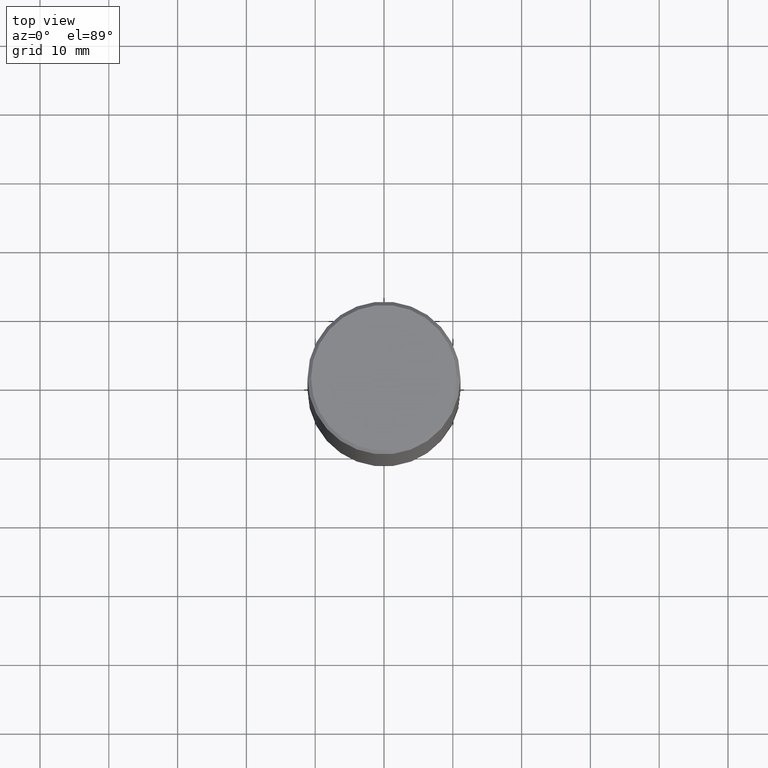
[diagram: clean part render]
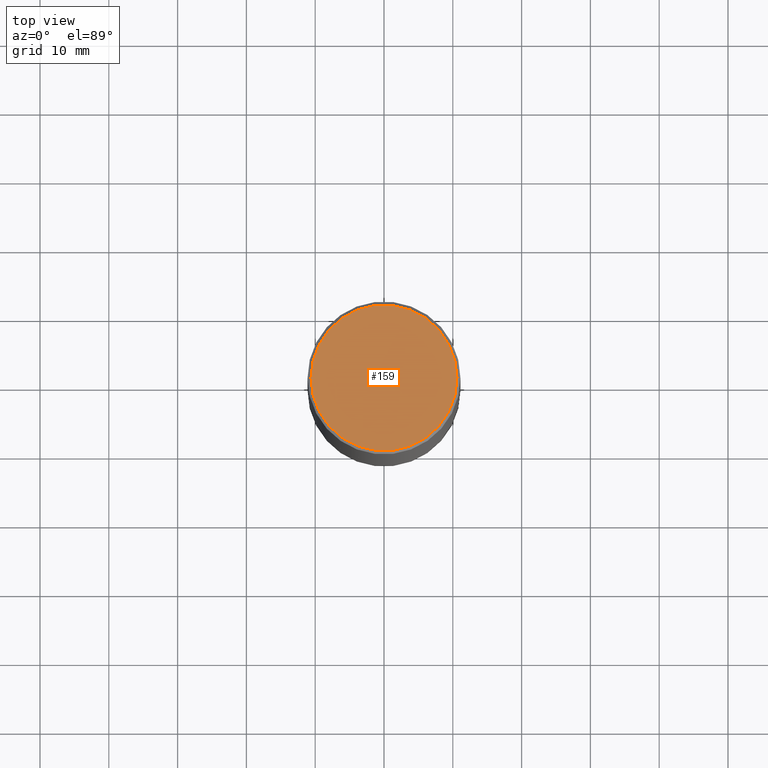
[diagram: same view with one face highlighted and labeled with its STEP entity id]
A machine part, top view. The second image highlights one B-rep face of the part: STEP entity #159.
In plain terms, the highlighted planar face has unit normal (0, -0, -1).
Its self-contained STEP definition (entity closure, byte-faithful):
#2 = EDGE_LOOP ( 'NONE', ( #211, #153 ) ) ;
#34 = VERTEX_POINT ( 'NONE', #294 ) ;
#37 = VERTEX_POINT ( 'NONE', #195 ) ;
#76 = EDGE_CURVE ( 'NONE', #37, #34, #320, .T. ) ;
#79 = AXIS2_PLACEMENT_3D ( 'NONE', #278, #143, #85 ) ;
#85 = DIRECTION ( 'NONE',  ( -1.000000000000000000, 6.982962677686265922E-15, -4.876176775795935793E-29 ) ) ;
#113 = AXIS2_PLACEMENT_3D ( 'NONE', #289, #291, #349 ) ;
#143 = DIRECTION ( 'NONE',  ( 2.438088387897960049E-29, -3.491481338843145188E-15, -1.000000000000000000 ) ) ;
#153 = ORIENTED_EDGE ( 'NONE', *, *, #205, .T. ) ;
#155 = AXIS2_PLACEMENT_3D ( 'NONE', #219, #191, #332 ) ;
#159 = ADVANCED_FACE ( 'NONE', ( #364 ), #173, .F. ) ;
#173 = PLANE ( 'NONE',  #79 ) ;
#191 = DIRECTION ( 'NONE',  ( -2.445468806185136597E-29, 3.491481338843145583E-15, 1.000000000000000000 ) ) ;
#195 = CARTESIAN_POINT ( 'NONE',  ( -0.4174999999999996492, 2.950301731322445161E-15, 4.268512490079900125E-18 ) ) ;
#205 = EDGE_CURVE ( 'NONE', #34, #37, #330, .T. ) ;
#211 = ORIENTED_EDGE ( 'NONE', *, *, #76, .T. ) ;
#219 = CARTESIAN_POINT ( 'NONE',  ( -1.043851414335219820E-46, 1.490343170380447200E-32, 4.268512490100411279E-18 ) ) ;
#278 = CARTESIAN_POINT ( 'NONE',  ( 2.915386917934013512E-15, 0.4174999999999996492, -1.455559202721961867E-15 ) ) ;
#289 = CARTESIAN_POINT ( 'NONE',  ( -1.043851414335219820E-46, 1.490343170380447200E-32, 4.268512490100411279E-18 ) ) ;
#291 = DIRECTION ( 'NONE',  ( -2.445468806185136597E-29, 3.491481338843145583E-15, 1.000000000000000000 ) ) ;
#294 = CARTESIAN_POINT ( 'NONE',  ( 0.4174999999999996492, -2.967777707435759010E-15, 4.268512490120983292E-18 ) ) ;
#320 = CIRCLE ( 'NONE', #155, 0.4174999999999996492 ) ;
#330 = CIRCLE ( 'NONE', #113, 0.4174999999999996492 ) ;
#332 = DIRECTION ( 'NONE',  ( 1.000000000000000000, -6.982962677686266711E-15, 4.876119722228001824E-29 ) ) ;
#349 = DIRECTION ( 'NONE',  ( 1.000000000000000000, -6.982962677686266711E-15, 4.876119722228001824E-29 ) ) ;
#364 = FACE_OUTER_BOUND ( 'NONE', #2, .T. ) ;